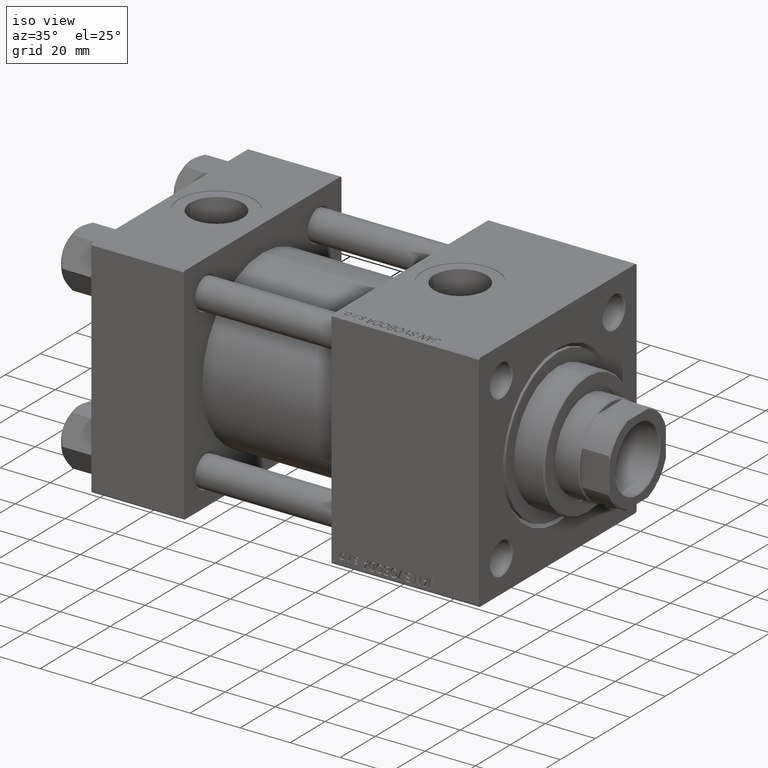
[diagram: clean part render]
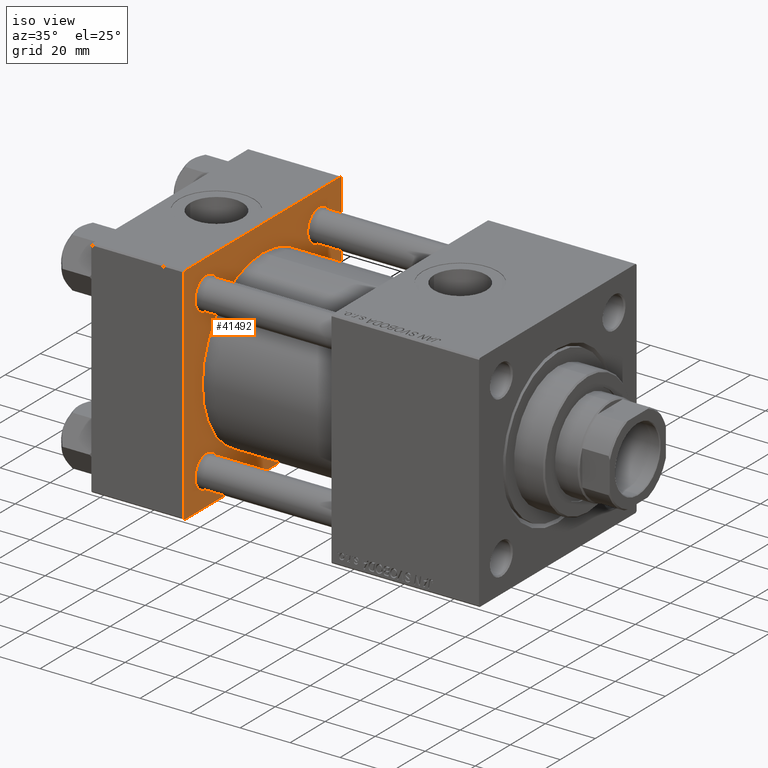
[diagram: same view with one face highlighted and labeled with its STEP entity id]
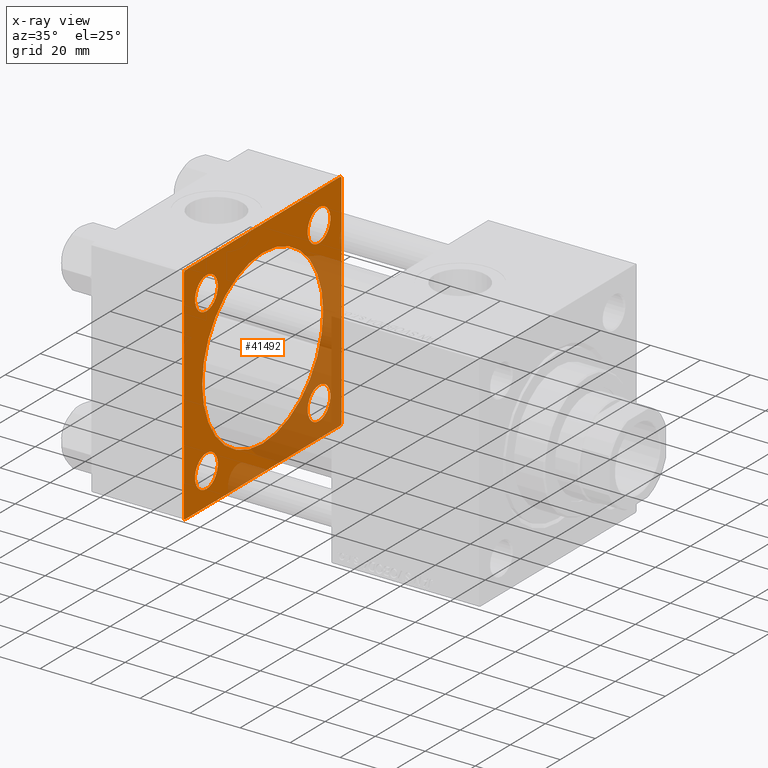
[diagram: x-ray of the same camera — body ghosted, the highlighted face saturated]
A machine part, iso view. The second image highlights one B-rep face of the part: STEP entity #41492.
The next image is the same camera in x-ray: the body ghosted, the highlighted face saturated — about 34% of this face is hidden behind the body in this view.
In plain terms, the highlighted planar face has unit normal (-1, 0, 0).
Its self-contained STEP definition (entity closure, byte-faithful):
#602 = VECTOR ( 'NONE', #2861, 1000.000000000000000 ) ;
#927 = ORIENTED_EDGE ( 'NONE', *, *, #47748, .T. ) ;
#1416 = CIRCLE ( 'NONE', #29798, 6.500000000000061284 ) ;
#1841 = LINE ( 'NONE', #21889, #20068 ) ;
#2012 = CARTESIAN_POINT ( 'NONE',  ( 37.00000000000000000, -45.00000000000000000, 44.99999999999998579 ) ) ;
#2102 = CARTESIAN_POINT ( 'NONE',  ( 37.00000000000000000, -32.14999999999997726, -38.65000000000004121 ) ) ;
#2514 = EDGE_CURVE ( 'NONE', #31909, #16307, #17868, .T. ) ;
#2605 = AXIS2_PLACEMENT_3D ( 'NONE', #6036, #17461, #17215 ) ;
#2702 = EDGE_LOOP ( 'NONE', ( #12723, #23980 ) ) ;
#2765 = EDGE_CURVE ( 'NONE', #44518, #11639, #41403, .T. ) ;
#2846 = EDGE_CURVE ( 'NONE', #34886, #45204, #34697, .T. ) ;
#2861 = DIRECTION ( 'NONE',  ( 0.000000000000000000, -1.000000000000000000, -2.312964634635742957E-16 ) ) ;
#2864 = EDGE_CURVE ( 'NONE', #45355, #38718, #8729, .T. ) ;
#3926 = DIRECTION ( 'NONE',  ( 1.000000000000000000, -0.000000000000000000, 0.000000000000000000 ) ) ;
#4315 = ORIENTED_EDGE ( 'NONE', *, *, #45051, .T. ) ;
#4952 = CARTESIAN_POINT ( 'NONE',  ( 37.00000000000000000, 0.000000000000000000, 0.000000000000000000 ) ) ;
#5155 = CARTESIAN_POINT ( 'NONE',  ( 37.00000000000000000, -32.14999999999997726, 25.64999999999996305 ) ) ;
#5263 = EDGE_CURVE ( 'NONE', #27370, #38479, #33773, .T. ) ;
#5760 = EDGE_LOOP ( 'NONE', ( #30625, #50071 ) ) ;
#6036 = CARTESIAN_POINT ( 'NONE',  ( 37.00000000000000000, -32.14999999999997726, -32.15000000000000568 ) ) ;
#6136 = DIRECTION ( 'NONE',  ( 0.000000000000000000, 0.000000000000000000, 1.000000000000000000 ) ) ;
#6143 = CARTESIAN_POINT ( 'NONE',  ( 37.00000000000000000, -32.14999999999997726, 32.15000000000000568 ) ) ;
#6902 = EDGE_CURVE ( 'NONE', #45204, #34886, #15055, .T. ) ;
#7396 = DIRECTION ( 'NONE',  ( -1.000000000000000000, 0.000000000000000000, -0.000000000000000000 ) ) ;
#8101 = ORIENTED_EDGE ( 'NONE', *, *, #31852, .T. ) ;
#8729 = CIRCLE ( 'NONE', #33894, 6.500000000000061284 ) ;
#8873 = AXIS2_PLACEMENT_3D ( 'NONE', #26691, #7396, #45983 ) ;
#9416 = DIRECTION ( 'NONE',  ( 0.000000000000000000, 0.000000000000000000, -1.000000000000000000 ) ) ;
#9696 = EDGE_LOOP ( 'NONE', ( #42717, #31018 ) ) ;
#9742 = CARTESIAN_POINT ( 'NONE',  ( 37.00000000000000000, 45.00000000000000000, 45.00000000000000711 ) ) ;
#9953 = CARTESIAN_POINT ( 'NONE',  ( 37.00000000000000000, 32.14999999999999147, -32.14999999999999858 ) ) ;
#10170 = DIRECTION ( 'NONE',  ( 0.000000000000000000, 0.000000000000000000, 1.000000000000000000 ) ) ;
#10185 = AXIS2_PLACEMENT_3D ( 'NONE', #9953, #40921, #6136 ) ;
#10451 = DIRECTION ( 'NONE',  ( 0.000000000000000000, 0.000000000000000000, 1.000000000000000000 ) ) ;
#10864 = ORIENTED_EDGE ( 'NONE', *, *, #2514, .T. ) ;
#11584 = FACE_BOUND ( 'NONE', #5760, .T. ) ;
#11639 = VERTEX_POINT ( 'NONE', #11653 ) ;
#11653 = CARTESIAN_POINT ( 'NONE',  ( 37.00000000000000000, 45.00000000000000000, -44.49999999999996447 ) ) ;
#11931 = VERTEX_POINT ( 'NONE', #5155 ) ;
#12017 = EDGE_CURVE ( 'NONE', #27370, #11639, #1841, .T. ) ;
#12070 = FACE_OUTER_BOUND ( 'NONE', #22092, .T. ) ;
#12113 = LINE ( 'NONE', #14232, #34292 ) ;
#12485 = CARTESIAN_POINT ( 'NONE',  ( 37.00000000000000000, -45.00000000000000000, 44.49999999999998579 ) ) ;
#12722 = VECTOR ( 'NONE', #43698, 1000.000000000000114 ) ;
#12723 = ORIENTED_EDGE ( 'NONE', *, *, #37776, .T. ) ;
#12877 = AXIS2_PLACEMENT_3D ( 'NONE', #4952, #19928, #42550 ) ;
#13005 = CARTESIAN_POINT ( 'NONE',  ( 37.00000000000000000, -32.14999999999997726, -25.64999999999997016 ) ) ;
#13424 = VERTEX_POINT ( 'NONE', #48139 ) ;
#13735 = CARTESIAN_POINT ( 'NONE',  ( 37.00000000000000000, 45.00000000000000000, -44.99999999999999289 ) ) ;
#13741 = VERTEX_POINT ( 'NONE', #2102 ) ;
#13777 = DIRECTION ( 'NONE',  ( -0.000000000000000000, 0.7071067811865474617, 0.7071067811865474617 ) ) ;
#13998 = CARTESIAN_POINT ( 'NONE',  ( 37.00000000000000000, 32.14999999999999147, 25.64999999999993818 ) ) ;
#14232 = CARTESIAN_POINT ( 'NONE',  ( 37.00000000000000000, 44.49999999999997158, 45.00000000000000711 ) ) ;
#14680 = AXIS2_PLACEMENT_3D ( 'NONE', #42893, #27408, #23592 ) ;
#14995 = DIRECTION ( 'NONE',  ( 0.000000000000000000, 0.000000000000000000, 1.000000000000000000 ) ) ;
#15055 = CIRCLE ( 'NONE', #10185, 6.500000000000061284 ) ;
#15614 = CARTESIAN_POINT ( 'NONE',  ( 37.00000000000000000, -32.14999999999997726, 32.15000000000000568 ) ) ;
#16307 = VERTEX_POINT ( 'NONE', #17039 ) ;
#17013 = LINE ( 'NONE', #2012, #36479 ) ;
#17039 = CARTESIAN_POINT ( 'NONE',  ( 37.00000000000000000, -44.49999999999997158, 44.99999999999998579 ) ) ;
#17215 = DIRECTION ( 'NONE',  ( 0.000000000000000000, 0.000000000000000000, 1.000000000000000000 ) ) ;
#17301 = CARTESIAN_POINT ( 'NONE',  ( 37.00000000000000000, 45.00000000000000000, 45.00000000000000711 ) ) ;
#17461 = DIRECTION ( 'NONE',  ( -1.000000000000000000, 0.000000000000000000, -0.000000000000000000 ) ) ;
#17868 = LINE ( 'NONE', #9742, #602 ) ;
#18095 = ORIENTED_EDGE ( 'NONE', *, *, #6902, .T. ) ;
#18250 = LINE ( 'NONE', #37786, #23421 ) ;
#18426 = AXIS2_PLACEMENT_3D ( 'NONE', #15614, #24470, #46567 ) ;
#18541 = CARTESIAN_POINT ( 'NONE',  ( 37.00000000000000000, 32.14999999999999147, -32.14999999999999858 ) ) ;
#19513 = CARTESIAN_POINT ( 'NONE',  ( 37.00000000000000000, -45.00000000000000000, 44.49999999999998579 ) ) ;
#19928 = DIRECTION ( 'NONE',  ( -1.000000000000000000, 0.000000000000000000, -0.000000000000000000 ) ) ;
#20068 = VECTOR ( 'NONE', #13777, 1000.000000000000114 ) ;
#20294 = EDGE_CURVE ( 'NONE', #13424, #11931, #34843, .T. ) ;
#20354 = EDGE_CURVE ( 'NONE', #40908, #13741, #50238, .T. ) ;
#20442 = FACE_BOUND ( 'NONE', #28051, .T. ) ;
#20641 = ORIENTED_EDGE ( 'NONE', *, *, #2846, .T. ) ;
#21057 = AXIS2_PLACEMENT_3D ( 'NONE', #6143, #21619, #10451 ) ;
#21352 = DIRECTION ( 'NONE',  ( -1.000000000000000000, 0.000000000000000000, -0.000000000000000000 ) ) ;
#21619 = DIRECTION ( 'NONE',  ( -1.000000000000000000, 0.000000000000000000, -0.000000000000000000 ) ) ;
#21889 = CARTESIAN_POINT ( 'NONE',  ( 37.00000000000000000, 45.00000000000000000, -44.49999999999999289 ) ) ;
#22092 = EDGE_LOOP ( 'NONE', ( #23737, #43462, #33728, #8101, #10864, #39042, #927, #4315 ) ) ;
#23421 = VECTOR ( 'NONE', #37548, 1000.000000000000000 ) ;
#23592 = DIRECTION ( 'NONE',  ( 0.000000000000000000, 0.000000000000000000, 1.000000000000000000 ) ) ;
#23677 = ORIENTED_EDGE ( 'NONE', *, *, #27001, .T. ) ;
#23737 = ORIENTED_EDGE ( 'NONE', *, *, #5263, .F. ) ;
#23750 = FACE_BOUND ( 'NONE', #2702, .T. ) ;
#23980 = ORIENTED_EDGE ( 'NONE', *, *, #2864, .T. ) ;
#23991 = FACE_BOUND ( 'NONE', #9696, .T. ) ;
#24011 = EDGE_CURVE ( 'NONE', #28367, #25002, #43847, .T. ) ;
#24309 = EDGE_CURVE ( 'NONE', #25002, #28367, #36563, .T. ) ;
#24470 = DIRECTION ( 'NONE',  ( -1.000000000000000000, 0.000000000000000000, -0.000000000000000000 ) ) ;
#24741 = VERTEX_POINT ( 'NONE', #40275 ) ;
#25002 = VERTEX_POINT ( 'NONE', #47573 ) ;
#25369 = CARTESIAN_POINT ( 'NONE',  ( 37.00000000000000000, 1.622946243093158675E-15, -34.50000000000000000 ) ) ;
#25764 = CARTESIAN_POINT ( 'NONE',  ( 37.00000000000000000, 44.50000000000000000, -44.99999999999999289 ) ) ;
#26691 = CARTESIAN_POINT ( 'NONE',  ( 37.00000000000000000, -32.14999999999997726, -32.15000000000000568 ) ) ;
#27001 = EDGE_CURVE ( 'NONE', #13741, #40908, #47216, .T. ) ;
#27169 = DIRECTION ( 'NONE',  ( -1.000000000000000000, 0.000000000000000000, -0.000000000000000000 ) ) ;
#27370 = VERTEX_POINT ( 'NONE', #25764 ) ;
#27408 = DIRECTION ( 'NONE',  ( 1.000000000000000000, -0.000000000000000000, 0.000000000000000000 ) ) ;
#27558 = PLANE ( 'NONE',  #12877 ) ;
#28051 = EDGE_LOOP ( 'NONE', ( #20641, #18095 ) ) ;
#28098 = CIRCLE ( 'NONE', #18426, 6.500000000000040856 ) ;
#28367 = VERTEX_POINT ( 'NONE', #25369 ) ;
#29798 = AXIS2_PLACEMENT_3D ( 'NONE', #40147, #21352, #10170 ) ;
#29978 = DIRECTION ( 'NONE',  ( 0.000000000000000000, -0.7071067811865574537, 0.7071067811865376918 ) ) ;
#30625 = ORIENTED_EDGE ( 'NONE', *, *, #36581, .T. ) ;
#30635 = AXIS2_PLACEMENT_3D ( 'NONE', #18541, #41892, #14995 ) ;
#30734 = DIRECTION ( 'NONE',  ( 0.000000000000000000, 0.000000000000000000, 1.000000000000000000 ) ) ;
#31018 = ORIENTED_EDGE ( 'NONE', *, *, #24011, .F. ) ;
#31057 = CARTESIAN_POINT ( 'NONE',  ( 37.00000000000000000, -44.49999999999994316, -45.00000000000000000 ) ) ;
#31852 = EDGE_CURVE ( 'NONE', #44518, #31909, #12113, .T. ) ;
#31909 = VERTEX_POINT ( 'NONE', #46645 ) ;
#33285 = DIRECTION ( 'NONE',  ( 0.000000000000000000, -1.000000000000000000, -7.709882115452476934E-17 ) ) ;
#33495 = EDGE_LOOP ( 'NONE', ( #23677, #46993 ) ) ;
#33728 = ORIENTED_EDGE ( 'NONE', *, *, #2765, .F. ) ;
#33773 = LINE ( 'NONE', #13735, #44599 ) ;
#33894 = AXIS2_PLACEMENT_3D ( 'NONE', #34798, #27169, #30734 ) ;
#34292 = VECTOR ( 'NONE', #29978, 999.9999999999998863 ) ;
#34697 = CIRCLE ( 'NONE', #30635, 6.500000000000061284 ) ;
#34798 = CARTESIAN_POINT ( 'NONE',  ( 37.00000000000000000, 32.14999999999999147, 32.14999999999999858 ) ) ;
#34843 = CIRCLE ( 'NONE', #21057, 6.500000000000040856 ) ;
#34886 = VERTEX_POINT ( 'NONE', #35211 ) ;
#35180 = CARTESIAN_POINT ( 'NONE',  ( 37.00000000000000000, 32.14999999999999147, 38.65000000000006253 ) ) ;
#35211 = CARTESIAN_POINT ( 'NONE',  ( 37.00000000000000000, 32.14999999999999147, -38.65000000000006253 ) ) ;
#35729 = AXIS2_PLACEMENT_3D ( 'NONE', #39900, #3926, #42520 ) ;
#36479 = VECTOR ( 'NONE', #44166, 1000.000000000000000 ) ;
#36563 = CIRCLE ( 'NONE', #14680, 34.50000000000000000 ) ;
#36581 = EDGE_CURVE ( 'NONE', #11931, #13424, #28098, .T. ) ;
#36977 = CARTESIAN_POINT ( 'NONE',  ( 37.00000000000000000, 32.14999999999999147, -25.64999999999993818 ) ) ;
#37106 = VECTOR ( 'NONE', #9416, 1000.000000000000000 ) ;
#37548 = DIRECTION ( 'NONE',  ( 0.000000000000000000, 0.7071067811865672237, -0.7071067811865279218 ) ) ;
#37631 = EDGE_CURVE ( 'NONE', #16307, #46013, #39905, .T. ) ;
#37776 = EDGE_CURVE ( 'NONE', #38718, #45355, #1416, .T. ) ;
#37786 = CARTESIAN_POINT ( 'NONE',  ( 37.00000000000000000, -44.49999999999997158, -45.00000000000000000 ) ) ;
#38479 = VERTEX_POINT ( 'NONE', #31057 ) ;
#38718 = VERTEX_POINT ( 'NONE', #13998 ) ;
#39042 = ORIENTED_EDGE ( 'NONE', *, *, #37631, .T. ) ;
#39900 = CARTESIAN_POINT ( 'NONE',  ( 37.00000000000000000, -2.602085213965210642E-15, 0.000000000000000000 ) ) ;
#39905 = LINE ( 'NONE', #12485, #12722 ) ;
#40147 = CARTESIAN_POINT ( 'NONE',  ( 37.00000000000000000, 32.14999999999999147, 32.14999999999999858 ) ) ;
#40275 = CARTESIAN_POINT ( 'NONE',  ( 37.00000000000000000, -45.00000000000000000, -44.49999999999997158 ) ) ;
#40908 = VERTEX_POINT ( 'NONE', #13005 ) ;
#40921 = DIRECTION ( 'NONE',  ( -1.000000000000000000, 0.000000000000000000, -0.000000000000000000 ) ) ;
#41403 = LINE ( 'NONE', #17301, #37106 ) ;
#41492 = ADVANCED_FACE ( 'NONE', ( #42791, #20442, #11584, #23750, #23991, #12070 ), #27558, .F. ) ;
#41892 = DIRECTION ( 'NONE',  ( -1.000000000000000000, 0.000000000000000000, -0.000000000000000000 ) ) ;
#42520 = DIRECTION ( 'NONE',  ( 0.000000000000000000, 0.000000000000000000, 1.000000000000000000 ) ) ;
#42550 = DIRECTION ( 'NONE',  ( -0.000000000000000000, 0.000000000000000000, 1.000000000000000000 ) ) ;
#42717 = ORIENTED_EDGE ( 'NONE', *, *, #24309, .F. ) ;
#42791 = FACE_BOUND ( 'NONE', #33495, .T. ) ;
#42893 = CARTESIAN_POINT ( 'NONE',  ( 37.00000000000000000, -2.602085213965210642E-15, 0.000000000000000000 ) ) ;
#43462 = ORIENTED_EDGE ( 'NONE', *, *, #12017, .T. ) ;
#43698 = DIRECTION ( 'NONE',  ( -0.000000000000000000, -0.7071067811865474617, -0.7071067811865474617 ) ) ;
#43847 = CIRCLE ( 'NONE', #35729, 34.50000000000000000 ) ;
#44166 = DIRECTION ( 'NONE',  ( 0.000000000000000000, 0.000000000000000000, -1.000000000000000000 ) ) ;
#44518 = VERTEX_POINT ( 'NONE', #47517 ) ;
#44599 = VECTOR ( 'NONE', #33285, 1000.000000000000000 ) ;
#45051 = EDGE_CURVE ( 'NONE', #24741, #38479, #18250, .T. ) ;
#45204 = VERTEX_POINT ( 'NONE', #36977 ) ;
#45355 = VERTEX_POINT ( 'NONE', #35180 ) ;
#45983 = DIRECTION ( 'NONE',  ( 0.000000000000000000, 0.000000000000000000, 1.000000000000000000 ) ) ;
#46013 = VERTEX_POINT ( 'NONE', #19513 ) ;
#46567 = DIRECTION ( 'NONE',  ( 0.000000000000000000, 0.000000000000000000, 1.000000000000000000 ) ) ;
#46645 = CARTESIAN_POINT ( 'NONE',  ( 37.00000000000000000, 44.49999999999997158, 45.00000000000000711 ) ) ;
#46993 = ORIENTED_EDGE ( 'NONE', *, *, #20354, .T. ) ;
#47216 = CIRCLE ( 'NONE', #2605, 6.500000000000033751 ) ;
#47517 = CARTESIAN_POINT ( 'NONE',  ( 37.00000000000000000, 45.00000000000000000, 44.49999999999999289 ) ) ;
#47573 = CARTESIAN_POINT ( 'NONE',  ( 37.00000000000000000, -2.602085213965210642E-15, 34.50000000000000000 ) ) ;
#47748 = EDGE_CURVE ( 'NONE', #46013, #24741, #17013, .T. ) ;
#48139 = CARTESIAN_POINT ( 'NONE',  ( 37.00000000000000000, -32.14999999999997726, 38.65000000000004832 ) ) ;
#50071 = ORIENTED_EDGE ( 'NONE', *, *, #20294, .T. ) ;
#50238 = CIRCLE ( 'NONE', #8873, 6.500000000000033751 ) ;